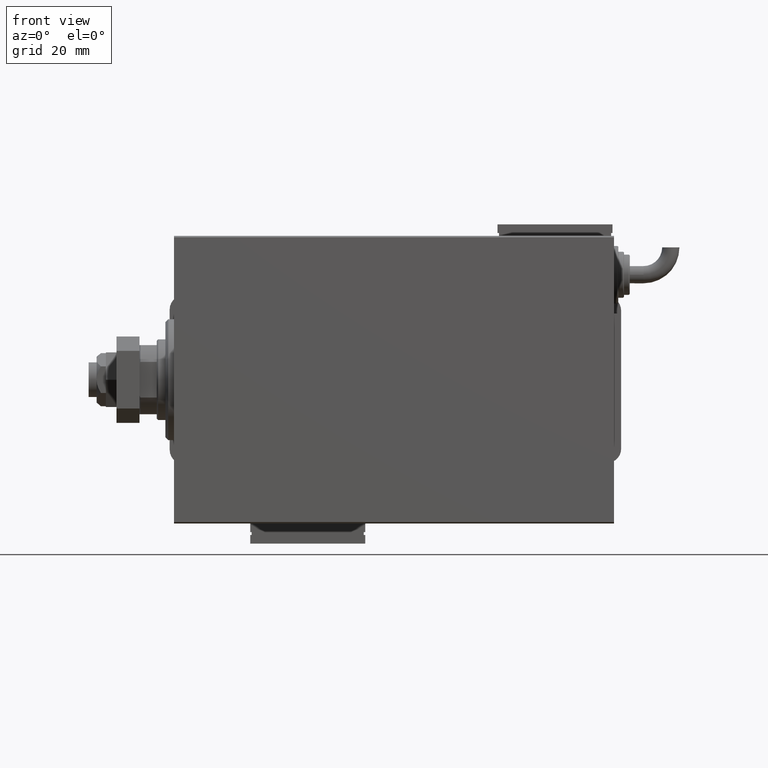
[diagram: clean part render]
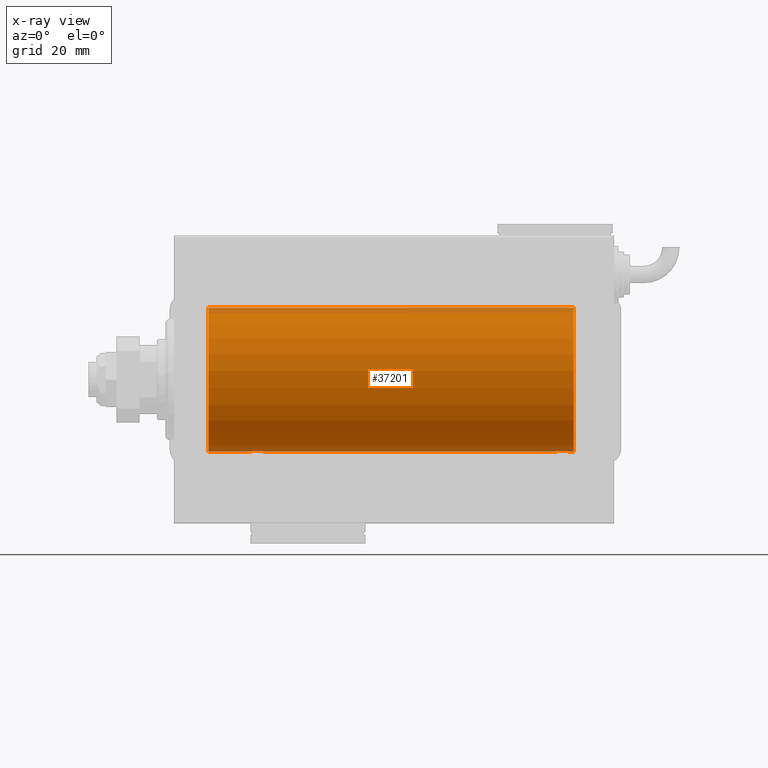
[diagram: x-ray — body ghosted, one internal face saturated and labeled with its STEP entity id]
A machine part, front view, then the same camera in x-ray: the body is ghosted and one INTERNAL B-rep face — a face not visible from any outside direction — is saturated and labeled: STEP entity #37201.
In plain terms, the highlighted cylindrical surface (partial cylindrical patch) has radius 25 mm, axis along (-1, -0, -0).
Its self-contained STEP definition (entity closure, byte-faithful):
#207 = CARTESIAN_POINT ( 'NONE',  ( 12.00000000000001066, 3.061616997868383043E-15, -25.00000000000000000 ) ) ;
#768 = B_SPLINE_CURVE_WITH_KNOTS ( 'NONE', 3,
 ( #56009, #43805, #20067, #15788, #20965, #43202, #24627, #1458, #1765, #34366, #53557, #10914, #6646, #15486, #20373, #16089, #38641, #52648, #6339, #11519, #58108, #47770, #58405, #53851, #57204, #53257, #34060, #30392, #2668, #29495, #2357, #52950 ),
 .UNSPECIFIED., .F., .F.,
 ( 4, 2, 2, 2, 2, 2, 2, 2, 2, 2, 2, 2, 2, 2, 2, 4 ),
 ( 0.007821024441662289411, 0.008309723826317897549, 0.008798423210973505687, 0.009287122595629115560, 0.009775821980284723697, 0.01026452136494033357, 0.01075322074959594171, 0.01124192013425155158, 0.01173061951890715972, 0.01221931890356276786, 0.01270801828821837773, 0.01319671767287398587, 0.01368541705752959400, 0.01417411644218520214, 0.01466281582684081028, 0.01564021459615199533 ),
 .UNSPECIFIED. ) ;
#1138 = CARTESIAN_POINT ( 'NONE',  ( 27.01461966282905180, -1.528152964861308138, -24.95362559291378801 ) ) ;
#1437 = CARTESIAN_POINT ( 'NONE',  ( 27.11814045851354038, -1.653834020452936038, -24.94550385189584674 ) ) ;
#1458 = CARTESIAN_POINT ( 'NONE',  ( 136.9874981583440103, -1.525407911884357315, -24.95379469572362297 ) ) ;
#1765 = CARTESIAN_POINT ( 'NONE',  ( 136.8841238278646983, -1.651251241585105944, -24.94567559498349141 ) ) ;
#2042 = CARTESIAN_POINT ( 'NONE',  ( 30.11036796508864910, -2.245863995402895164, -24.89899750494197406 ) ) ;
#2357 = CARTESIAN_POINT ( 'NONE',  ( 132.5000000000000000, -0.3305063766663871583, -25.00000000000000000 ) ) ;
#2668 = CARTESIAN_POINT ( 'NONE',  ( 132.7539362090593045, -1.109818057797421043, -24.97580694515541921 ) ) ;
#4222 = ORIENTED_EDGE ( 'NONE', *, *, #7927, .F. ) ;
#5719 = CARTESIAN_POINT ( 'NONE',  ( 26.75393620905933290, -1.109818057797416158, -24.97580694515542277 ) ) ;
#5920 = VERTEX_POINT ( 'NONE', #207 ) ;
#6016 = CARTESIAN_POINT ( 'NONE',  ( 28.35439333851368460, -2.420689345803756165, -24.88254961038873958 ) ) ;
#6339 = CARTESIAN_POINT ( 'NONE',  ( 134.6740342996053812, -2.484007091859767424, -24.87630842367762796 ) ) ;
#6646 = CARTESIAN_POINT ( 'NONE',  ( 136.1103679650886988, -2.245863995402891167, -24.89899750494197406 ) ) ;
#7284 = CIRCLE ( 'NONE', #49112, 25.00000000000000000 ) ;
#7927 = EDGE_CURVE ( 'NONE', #30765, #27621, #13981, .T. ) ;
#8656 = VECTOR ( 'NONE', #12517, 1000.000000000000000 ) ;
#8856 = CARTESIAN_POINT ( 'NONE',  ( 139.0000000000000000, 3.061616997868383043E-15, -25.00000000000000000 ) ) ;
#10590 = CARTESIAN_POINT ( 'NONE',  ( 31.48417840057656747, -0.3254210271412200650, -24.99840249400844527 ) ) ;
#10778 = VECTOR ( 'NONE', #30215, 1000.000000000000000 ) ;
#10862 = ORIENTED_EDGE ( 'NONE', *, *, #51823, .T. ) ;
#10891 = CARTESIAN_POINT ( 'NONE',  ( 26.50000000000000000, -0.3305063766663763336, -25.00000000000000355 ) ) ;
#10914 = CARTESIAN_POINT ( 'NONE',  ( 136.2538319542450722, -2.169003991399869324, -24.90589728951138682 ) ) ;
#11199 = CARTESIAN_POINT ( 'NONE',  ( 27.74915976075945068, -2.170728182476717283, -24.90574631553725027 ) ) ;
#11519 = CARTESIAN_POINT ( 'NONE',  ( 134.3543933385136881, -2.420689345803765047, -24.88254961038873248 ) ) ;
#12134 = VERTEX_POINT ( 'NONE', #52272 ) ;
#12153 = B_SPLINE_CURVE_WITH_KNOTS ( 'NONE', 3,
 ( #19742, #34041, #10590, #34348, #47751, #33437, #48059, #57787, #43790, #14872, #53240, #38026, #2042, #43183, #48364, #56588, #52933, #15765, #38928, #6016, #20047, #57485, #11199, #33743, #42596, #1437, #1138, #29776, #5719, #25213, #10891, #38622 ),
 .UNSPECIFIED., .F., .F.,
 ( 4, 2, 2, 2, 2, 2, 2, 2, 2, 2, 2, 2, 2, 2, 2, 4 ),
 ( 0.007821024441662299820, 0.008309723826317907958, 0.008798423210973517830, 0.009287122595629122498, 0.009775821980284727167, 0.01026452136494033184, 0.01075322074959593650, 0.01124192013425154291, 0.01173061951890714757, 0.01221931890356275051, 0.01270801828821835691, 0.01319671767287396158, 0.01368541705752956625, 0.01417411644218517092, 0.01466281582684077732, 0.01564021459615199186 ),
 .UNSPECIFIED. ) ;
#12517 = DIRECTION ( 'NONE',  ( -1.000000000000000000, -0.000000000000000000, -0.000000000000000000 ) ) ;
#13082 = VERTEX_POINT ( 'NONE', #16993 ) ;
#13182 = DIRECTION ( 'NONE',  ( 0.000000000000000000, 0.000000000000000000, 1.000000000000000000 ) ) ;
#13981 = CIRCLE ( 'NONE', #50952, 25.00000000000000000 ) ;
#14872 = CARTESIAN_POINT ( 'NONE',  ( 30.65383336149337978, -1.881857718844712091, -24.92933960374833546 ) ) ;
#15486 = CARTESIAN_POINT ( 'NONE',  ( 135.8078834240580761, -2.371528299825742092, -24.88734287464371775 ) ) ;
#15736 = ORIENTED_EDGE ( 'NONE', *, *, #39675, .T. ) ;
#15765 = CARTESIAN_POINT ( 'NONE',  ( 28.83676410361457343, -2.500125740978191846, -24.87467329022545925 ) ) ;
#15788 = CARTESIAN_POINT ( 'NONE',  ( 137.4201490922092717, -0.6480119923854171793, -24.99212088949390775 ) ) ;
#16089 = CARTESIAN_POINT ( 'NONE',  ( 135.3294768011427607, -2.483544361357268748, -24.87635491893502149 ) ) ;
#16672 = EDGE_LOOP ( 'NONE', ( #4222, #15736, #54801, #44003, #10862, #21301, #35329, #51632 ) ) ;
#16993 = CARTESIAN_POINT ( 'NONE',  ( 132.5000000000000000, -1.188716680102861075E-14, -25.00000000000000000 ) ) ;
#18057 = FACE_OUTER_BOUND ( 'NONE', #16672, .T. ) ;
#18995 = EDGE_CURVE ( 'NONE', #13082, #45402, #52393, .T. ) ;
#19212 = CARTESIAN_POINT ( 'NONE',  ( 139.0000000000000000, 3.061616997868383043E-15, -25.00000000000000000 ) ) ;
#19742 = CARTESIAN_POINT ( 'NONE',  ( 31.50000000000000000, 3.061616978460191625E-15, -25.00000000000000000 ) ) ;
#20047 = CARTESIAN_POINT ( 'NONE',  ( 28.19564339083698457, -2.372734907014171224, -24.88722742718433523 ) ) ;
#20067 = CARTESIAN_POINT ( 'NONE',  ( 137.4841784005765817, -0.3254210271412169564, -24.99840249400844527 ) ) ;
#20373 = CARTESIAN_POINT ( 'NONE',  ( 135.6490439016909590, -2.419770561643903140, -24.88263927071751169 ) ) ;
#20965 = CARTESIAN_POINT ( 'NONE',  ( 137.3721596940860650, -0.8058335233485420801, -24.98746277938383287 ) ) ;
#21090 = CARTESIAN_POINT ( 'NONE',  ( 139.0000000000000000, 0.000000000000000000, 25.00000000000000000 ) ) ;
#21301 = ORIENTED_EDGE ( 'NONE', *, *, #50615, .T. ) ;
#21822 = EDGE_CURVE ( 'NONE', #27621, #60202, #48505, .T. ) ;
#22029 = VECTOR ( 'NONE', #36283, 1000.000000000000000 ) ;
#22873 = DIRECTION ( 'NONE',  ( -1.000000000000000000, 0.000000000000000000, 0.000000000000000000 ) ) ;
#23241 = CARTESIAN_POINT ( 'NONE',  ( 139.0000000000000000, 0.000000000000000000, 0.000000000000000000 ) ) ;
#24459 = CARTESIAN_POINT ( 'NONE',  ( 12.00000000000001066, 0.000000000000000000, 25.00000000000000000 ) ) ;
#24627 = CARTESIAN_POINT ( 'NONE',  ( 137.1701129028092225, -1.252049606094327583, -24.96900299967627390 ) ) ;
#25213 = CARTESIAN_POINT ( 'NONE',  ( 26.56650644760252789, -0.6588655613945878509, -24.99312727339970763 ) ) ;
#26556 = CARTESIAN_POINT ( 'NONE',  ( 139.0000000000000000, 0.000000000000000000, 0.000000000000000000 ) ) ;
#26819 = AXIS2_PLACEMENT_3D ( 'NONE', #23241, #36936, #13182 ) ;
#26846 = VECTOR ( 'NONE', #28639, 1000.000000000000000 ) ;
#27621 = VERTEX_POINT ( 'NONE', #37837 ) ;
#28462 = CARTESIAN_POINT ( 'NONE',  ( 31.50000000000000000, 3.061616978460191625E-15, -25.00000000000000000 ) ) ;
#28639 = DIRECTION ( 'NONE',  ( -1.000000000000000000, -0.000000000000000000, -0.000000000000000000 ) ) ;
#29495 = CARTESIAN_POINT ( 'NONE',  ( 132.5665064476025634, -0.6588655613945936240, -24.99312727339970408 ) ) ;
#29776 = CARTESIAN_POINT ( 'NONE',  ( 26.83172358506043054, -1.255214705003178555, -24.96884293994578030 ) ) ;
#30215 = DIRECTION ( 'NONE',  ( -1.000000000000000000, -0.000000000000000000, -0.000000000000000000 ) ) ;
#30392 = CARTESIAN_POINT ( 'NONE',  ( 132.8317235850604447, -1.255214705003191877, -24.96884293994577675 ) ) ;
#30765 = VERTEX_POINT ( 'NONE', #39733 ) ;
#32669 = CYLINDRICAL_SURFACE ( 'NONE', #26819, 25.00000000000000000 ) ;
#32820 = CARTESIAN_POINT ( 'NONE',  ( 137.5000000000000000, 3.061616978453486307E-15, -25.00000000000000000 ) ) ;
#33437 = CARTESIAN_POINT ( 'NONE',  ( 31.24760251019550950, -1.106703319666878071, -24.97594585958023572 ) ) ;
#33642 = VERTEX_POINT ( 'NONE', #32820 ) ;
#33743 = CARTESIAN_POINT ( 'NONE',  ( 27.47743225659810307, -1.989585286700244149, -24.92087098724765681 ) ) ;
#34041 = CARTESIAN_POINT ( 'NONE',  ( 31.50000000000000000, -0.1631750940176180942, -25.00000000000001066 ) ) ;
#34060 = CARTESIAN_POINT ( 'NONE',  ( 133.0146196628290340, -1.528152964861320573, -24.95362559291378446 ) ) ;
#34348 = CARTESIAN_POINT ( 'NONE',  ( 31.42014909220930363, -0.6480119923854200659, -24.99212088949392196 ) ) ;
#34366 = CARTESIAN_POINT ( 'NONE',  ( 136.6538333614934118, -1.881857718844720528, -24.92933960374834257 ) ) ;
#34849 = EDGE_CURVE ( 'NONE', #5920, #60202, #7284, .T. ) ;
#35329 = ORIENTED_EDGE ( 'NONE', *, *, #34849, .T. ) ;
#36283 = DIRECTION ( 'NONE',  ( -1.000000000000000000, -0.000000000000000000, -0.000000000000000000 ) ) ;
#36936 = DIRECTION ( 'NONE',  ( -1.000000000000000000, -0.000000000000000000, -0.000000000000000000 ) ) ;
#37201 = ADVANCED_FACE ( 'NONE', ( #18057 ), #32669, .F. ) ;
#37837 = CARTESIAN_POINT ( 'NONE',  ( 139.0000000000000000, 0.000000000000000000, 25.00000000000000000 ) ) ;
#38026 = CARTESIAN_POINT ( 'NONE',  ( 30.25383195424502958, -2.169003991399867104, -24.90589728951138326 ) ) ;
#38622 = CARTESIAN_POINT ( 'NONE',  ( 26.50000000000000355, -4.113702575029848227E-15, -25.00000000000000000 ) ) ;
#38641 = CARTESIAN_POINT ( 'NONE',  ( 135.1670649517806169, -2.499872792855082348, -24.87469871246082675 ) ) ;
#38928 = CARTESIAN_POINT ( 'NONE',  ( 28.67403429960540606, -2.484007091859761207, -24.87630842367763506 ) ) ;
#39675 = EDGE_CURVE ( 'NONE', #30765, #33642, #50299, .T. ) ;
#39733 = CARTESIAN_POINT ( 'NONE',  ( 139.0000000000000000, 3.061616997868383043E-15, -25.00000000000000000 ) ) ;
#41462 = DIRECTION ( 'NONE',  ( 0.000000000000000000, 0.000000000000000000, 1.000000000000000000 ) ) ;
#42596 = CARTESIAN_POINT ( 'NONE',  ( 27.34878866440888245, -1.884161199660614017, -24.92916496727982434 ) ) ;
#43183 = CARTESIAN_POINT ( 'NONE',  ( 29.80788342405805835, -2.371528299825741648, -24.88734287464370709 ) ) ;
#43202 = CARTESIAN_POINT ( 'NONE',  ( 137.2476025101955202, -1.106703319666879404, -24.97594585958023572 ) ) ;
#43790 = CARTESIAN_POINT ( 'NONE',  ( 30.88412382786470900, -1.651251241585097063, -24.94567559498348075 ) ) ;
#43805 = CARTESIAN_POINT ( 'NONE',  ( 137.5000000000000284, -0.1631750940176156794, -25.00000000000001421 ) ) ;
#44003 = ORIENTED_EDGE ( 'NONE', *, *, #18995, .T. ) ;
#45402 = VERTEX_POINT ( 'NONE', #28462 ) ;
#47214 = DIRECTION ( 'NONE',  ( -1.000000000000000000, 0.000000000000000000, 0.000000000000000000 ) ) ;
#47354 = EDGE_CURVE ( 'NONE', #33642, #13082, #768, .T. ) ;
#47751 = CARTESIAN_POINT ( 'NONE',  ( 31.37215969408607563, -0.8058335233485418581, -24.98746277938382931 ) ) ;
#47770 = CARTESIAN_POINT ( 'NONE',  ( 133.8927615416158687, -2.247417070759898383, -24.89885693081946272 ) ) ;
#48059 = CARTESIAN_POINT ( 'NONE',  ( 31.17011290280925451, -1.252049606094333578, -24.96900299967627745 ) ) ;
#48364 = CARTESIAN_POINT ( 'NONE',  ( 29.64904390169096970, -2.419770561643905804, -24.88263927071751169 ) ) ;
#48505 = LINE ( 'NONE', #21090, #10778 ) ;
#49112 = AXIS2_PLACEMENT_3D ( 'NONE', #52095, #47214, #51500 ) ;
#50299 = LINE ( 'NONE', #8856, #22029 ) ;
#50615 = EDGE_CURVE ( 'NONE', #12134, #5920, #58795, .T. ) ;
#50952 = AXIS2_PLACEMENT_3D ( 'NONE', #26556, #22873, #41462 ) ;
#51500 = DIRECTION ( 'NONE',  ( 0.000000000000000000, 0.000000000000000000, 1.000000000000000000 ) ) ;
#51632 = ORIENTED_EDGE ( 'NONE', *, *, #21822, .F. ) ;
#51823 = EDGE_CURVE ( 'NONE', #45402, #12134, #12153, .T. ) ;
#52095 = CARTESIAN_POINT ( 'NONE',  ( 12.00000000000001066, 0.000000000000000000, 0.000000000000000000 ) ) ;
#52272 = CARTESIAN_POINT ( 'NONE',  ( 26.50000000000000355, -4.113702575029848227E-15, -25.00000000000000000 ) ) ;
#52393 = LINE ( 'NONE', #19212, #26846 ) ;
#52648 = CARTESIAN_POINT ( 'NONE',  ( 134.8367641036145699, -2.500125740978196731, -24.87467329022544504 ) ) ;
#52933 = CARTESIAN_POINT ( 'NONE',  ( 29.16706495178060621, -2.499872792855077464, -24.87469871246082320 ) ) ;
#52950 = CARTESIAN_POINT ( 'NONE',  ( 132.5000000000000000, -1.188716680102861075E-14, -25.00000000000000000 ) ) ;
#53240 = CARTESIAN_POINT ( 'NONE',  ( 30.52536182243081342, -1.987446652080259391, -24.92104239223420592 ) ) ;
#53257 = CARTESIAN_POINT ( 'NONE',  ( 133.1181404585135510, -1.653834020452947806, -24.94550385189585029 ) ) ;
#53557 = CARTESIAN_POINT ( 'NONE',  ( 136.5253618224308525, -1.987446652080261167, -24.92104239223420947 ) ) ;
#53851 = CARTESIAN_POINT ( 'NONE',  ( 133.4774322565981208, -1.989585286700256805, -24.92087098724766747 ) ) ;
#54248 = CARTESIAN_POINT ( 'NONE',  ( 139.0000000000000000, 3.061616997868383043E-15, -25.00000000000000000 ) ) ;
#54801 = ORIENTED_EDGE ( 'NONE', *, *, #47354, .T. ) ;
#56009 = CARTESIAN_POINT ( 'NONE',  ( 137.5000000000000000, 3.061616978453486307E-15, -25.00000000000000000 ) ) ;
#56588 = CARTESIAN_POINT ( 'NONE',  ( 29.32947680114268252, -2.483544361357266084, -24.87635491893501083 ) ) ;
#57204 = CARTESIAN_POINT ( 'NONE',  ( 133.3487886644089144, -1.884161199660626229, -24.92916496727982789 ) ) ;
#57485 = CARTESIAN_POINT ( 'NONE',  ( 27.89276154161591137, -2.247417070759893498, -24.89885693081945917 ) ) ;
#57787 = CARTESIAN_POINT ( 'NONE',  ( 30.98749815834398902, -1.525407911884361312, -24.95379469572362652 ) ) ;
#58108 = CARTESIAN_POINT ( 'NONE',  ( 134.1956433908370059, -2.372734907014174777, -24.88722742718433167 ) ) ;
#58405 = CARTESIAN_POINT ( 'NONE',  ( 133.7491597607594542, -2.170728182476728829, -24.90574631553724672 ) ) ;
#58795 = LINE ( 'NONE', #54248, #8656 ) ;
#60202 = VERTEX_POINT ( 'NONE', #24459 ) ;